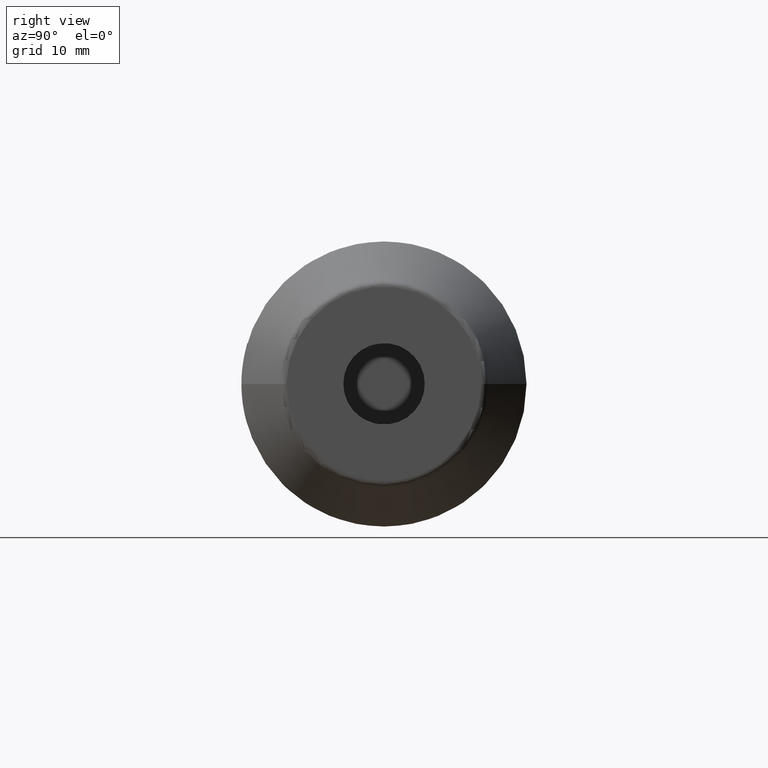
[diagram: clean part render]
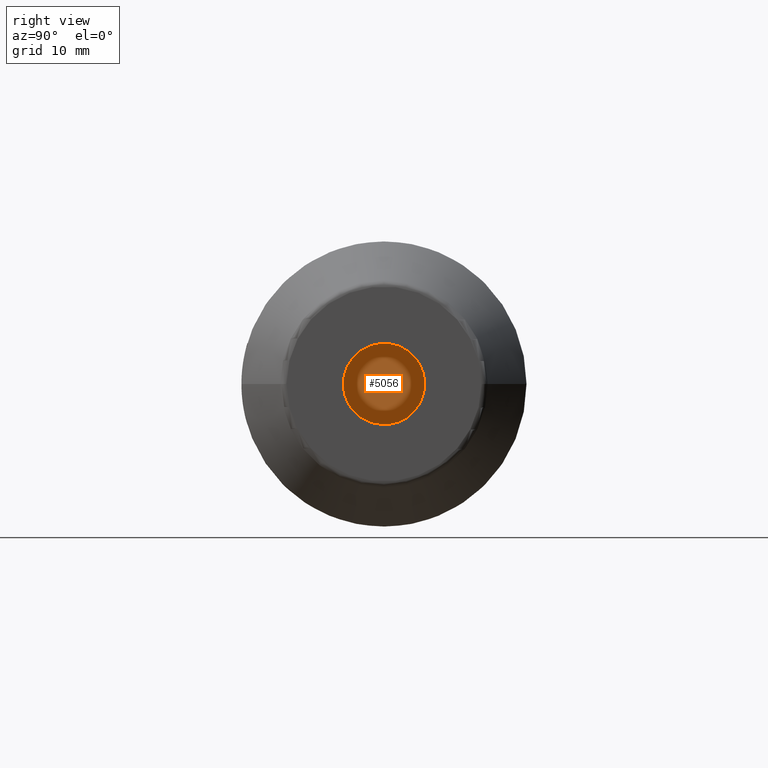
[diagram: same view with one face highlighted and labeled with its STEP entity id]
A machine part, right view. The second image highlights one B-rep face of the part: STEP entity #5056.
In plain terms, the highlighted planar face has unit normal (1, 0, 0).
Its self-contained STEP definition (entity closure, byte-faithful):
#1590=CARTESIAN_POINT('',(2.E1,0.E0,0.E0));
#1591=DIRECTION('',(-1.E0,0.E0,0.E0));
#1592=DIRECTION('',(0.E0,1.E0,0.E0));
#1593=AXIS2_PLACEMENT_3D('',#1590,#1591,#1592);
#1595=CARTESIAN_POINT('',(2.E1,0.E0,0.E0));
#1596=DIRECTION('',(1.E0,0.E0,0.E0));
#1597=DIRECTION('',(0.E0,1.E0,0.E0));
#1598=AXIS2_PLACEMENT_3D('',#1595,#1596,#1597);
#3371=CARTESIAN_POINT('',(2.E1,6.E0,0.E0));
#3372=CARTESIAN_POINT('',(2.E1,-6.E0,0.E0));
#3373=VERTEX_POINT('',#3371);
#3374=VERTEX_POINT('',#3372);
#5047=CARTESIAN_POINT('',(2.E1,0.E0,0.E0));
#5048=DIRECTION('',(1.E0,0.E0,0.E0));
#5049=DIRECTION('',(0.E0,-1.E0,0.E0));
#5050=AXIS2_PLACEMENT_3D('',#5047,#5048,#5049);
#5051=PLANE('',#5050);
#5052=ORIENTED_EDGE('',*,*,#5039,.T.);
#5053=ORIENTED_EDGE('',*,*,#4998,.F.);
#5054=EDGE_LOOP('',(#5052,#5053));
#5055=FACE_OUTER_BOUND('',#5054,.F.);
#5056=ADVANCED_FACE('',(#5055),#5051,.T.);
#1594=CIRCLE('',#1593,6.E0);
#1599=CIRCLE('',#1598,6.E0);
#4998=EDGE_CURVE('',#3373,#3374,#1599,.T.);
#5039=EDGE_CURVE('',#3373,#3374,#1594,.T.);